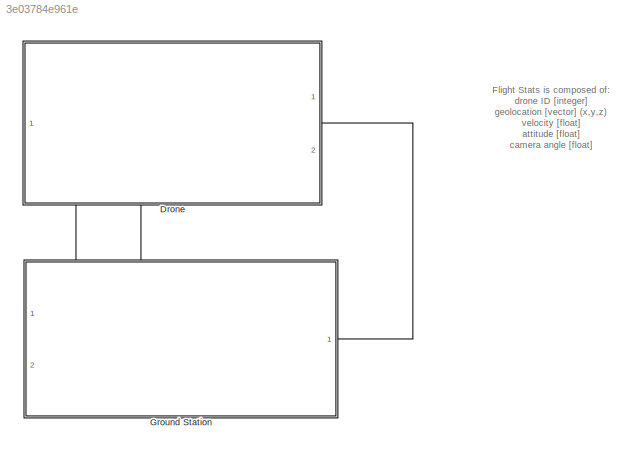
MODEL slx_3e03784e961e
KIND model
CONFIG AbsTol = auto
CONFIG EnableMultiTasking = off
CONFIG FixedStep = auto
CONFIG MaxStep = auto
CONFIG MinStep = auto
CONFIG RelTol = 1e-3
CONFIG SampleTimeConstraint = Unconstrained
CONFIG SolverName = VariableStepAuto
CONFIG StartTime = 0.0
CONFIG StopTime = 10.0
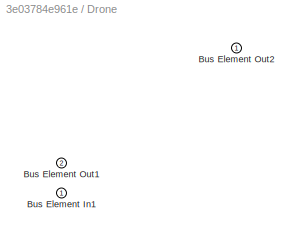
BLOCK [SubSystem] Drone
  PortSchema = {"entries":[{"content":{"headerSize":26,"margin":15,"minimumSpacing":25,"sides":[{"content":{"connectorIds":["Out1","Out2"]},"type":"ConnectorPlacement.EquallySpacedRectSide","uuid":"5dbdb512-c724-4537-b423-e7f241817497"},{"content":{"connectorIds":["In1"],"side":"RIGHT"},"type":"ConnectorPlacement.EquallySpacedRectSide","uuid":"ed169a95-4211-4c22-8607-e2cdf6a6fff2"},{"content":{"connectorIds":[],...<+439ch>
  Ports = [1, 2]
  RequestExecContextInheritance = off
BLOCK [Inport] Drone/Bus Element In1
BLOCK [Outport] Drone/Bus Element Out1
  Port = 2
BLOCK [Outport] Drone/Bus Element Out2
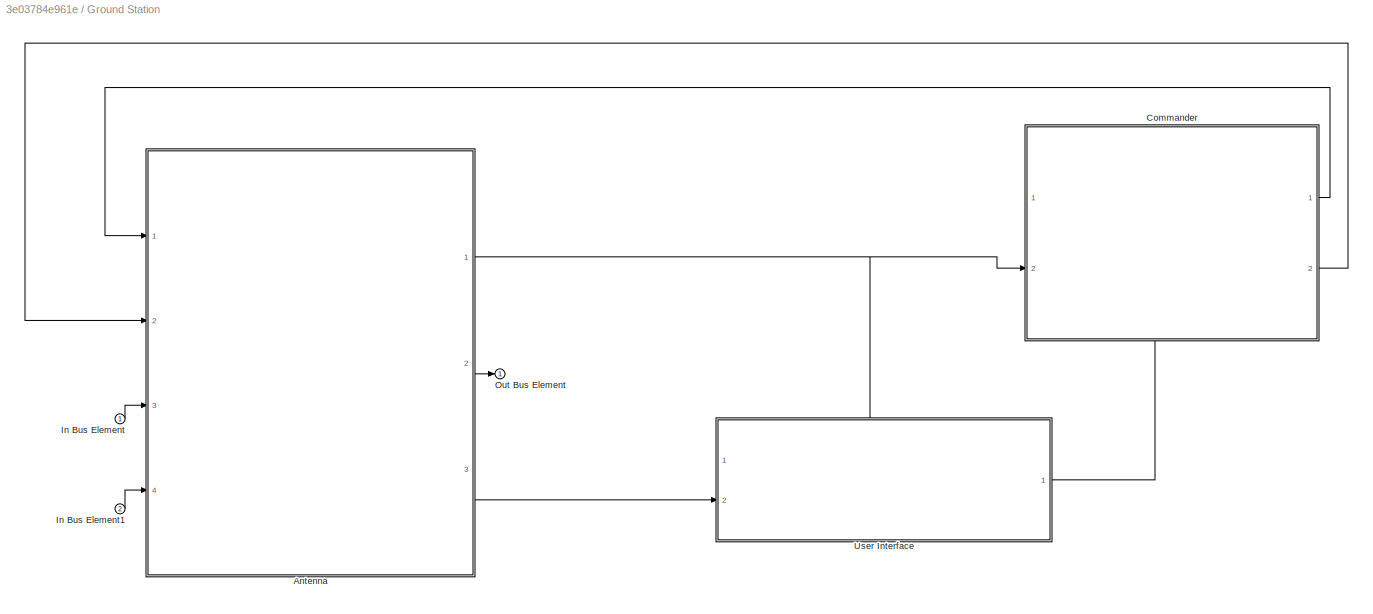
BLOCK [SubSystem] Ground Station
  PortSchema = {"entries":[{"content":{"headerSize":26,"margin":15,"minimumSpacing":25,"sides":[{"content":{"connectorIds":["In1","In2"]},"type":"ConnectorPlacement.EquallySpacedRectSide","uuid":"5dbdb512-c724-4537-b423-e7f241817497"},{"content":{"connectorIds":["Out1"],"side":"RIGHT"},"type":"ConnectorPlacement.EquallySpacedRectSide","uuid":"ed169a95-4211-4c22-8607-e2cdf6a6fff2"},{"content":{"connectorIds":[],"...<+438ch>
  Ports = [2, 1]
  RequestExecContextInheritance = off
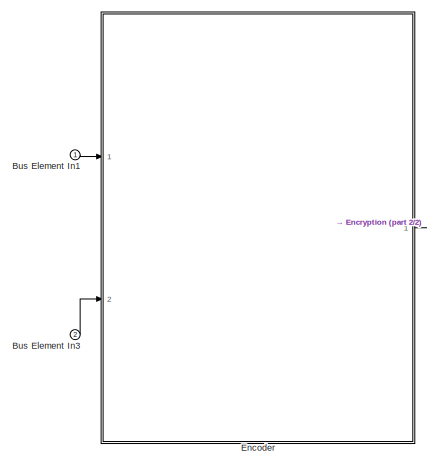
[diagram: Ground Station/Antenna - part 1/2, middle left region]
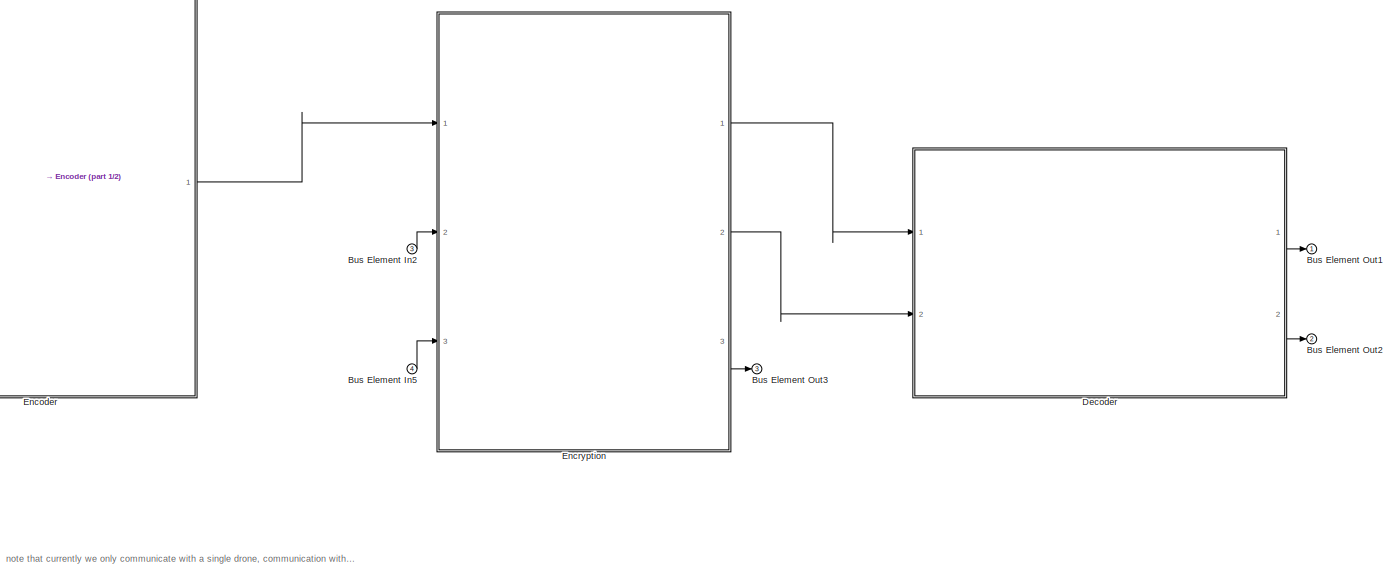
[diagram: Ground Station/Antenna - part 2/2, most of the canvas]
BLOCK [SubSystem] Ground Station/Antenna
  PortSchema = {"entries":[{"content":{"headerSize":26,"margin":15,"minimumSpacing":25,"sides":[{"content":{"connectorIds":["In1","In2","In3","In4"]},"type":"ConnectorPlacement.EquallySpacedRectSide","uuid":"8f51257f-f627-4f58-a4af-3e0fb88ba4bc"},{"content":{"connectorIds":["Out1","Out3","Out2"],"side":"RIGHT"},"type":"ConnectorPlacement.EquallySpacedRectSide","uuid":"f1fa1950-8e47-40b7-8d13-b3d0804be378"},{"con...<+464ch>
  Ports = [4, 3]
  RequestExecContextInheritance = off
BLOCK [Inport] Ground Station/Antenna/Bus Element In1
BLOCK [Inport] Ground Station/Antenna/Bus Element In2
  Port = 3
BLOCK [Inport] Ground Station/Antenna/Bus Element In3
  Port = 2
BLOCK [Inport] Ground Station/Antenna/Bus Element In5
  Port = 4
BLOCK [Outport] Ground Station/Antenna/Bus Element Out1
BLOCK [Outport] Ground Station/Antenna/Bus Element Out2
  Port = 2
BLOCK [Outport] Ground Station/Antenna/Bus Element Out3
  Port = 3
BLOCK [ModelReference] Ground Station/Antenna/Decoder
  ModelNameDialog = Decoder
  ModelReferenceVersion = 1.10
  PortSchema = {"entries":[{"content":{"headerSize":38,"margin":15,"minimumSpacing":25,"sides":[{"content":{"connectorIds":["In1","In2"]},"type":"ConnectorPlacement.EquallySpacedRectSide","uuid":"8f51257f-f627-4f58-a4af-3e0fb88ba4bc"},{"content":{"connectorIds":["Out1","Out2"],"side":"RIGHT"},"type":"ConnectorPlacement.EquallySpacedRectSide","uuid":"f1fa1950-8e47-40b7-8d13-b3d0804be378"},{"content":{"connectorId...<+445ch>
  Ports = [2, 2]
BLOCK [ModelReference] Ground Station/Antenna/Encoder
  ModelNameDialog = Encoder.slx
  ModelReferenceVersion = 1.7
  PortSchema = {"entries":[{"content":{"headerSize":38,"margin":15,"minimumSpacing":25,"sides":[{"content":{"connectorIds":["In1","In2"]},"type":"ConnectorPlacement.EquallySpacedRectSide","uuid":"8f51257f-f627-4f58-a4af-3e0fb88ba4bc"},{"content":{"connectorIds":["Out1"],"side":"RIGHT"},"type":"ConnectorPlacement.EquallySpacedRectSide","uuid":"f1fa1950-8e47-40b7-8d13-b3d0804be378"},{"content":{"connectorIds":[],"...<+438ch>
  Ports = [2, 1]
BLOCK [ModelReference] Ground Station/Antenna/Encryption
  ModelNameDialog = Encryption
  ModelReferenceVersion = 1.3
  PortSchema = {"entries":[{"content":{"headerSize":38,"margin":15,"minimumSpacing":25,"sides":[{"content":{"connectorIds":["In1","In2","In3"]},"type":"ConnectorPlacement.EquallySpacedRectSide","uuid":"8f51257f-f627-4f58-a4af-3e0fb88ba4bc"},{"content":{"connectorIds":["Out1","Out2","Out3"],"side":"RIGHT"},"type":"ConnectorPlacement.EquallySpacedRectSide","uuid":"f1fa1950-8e47-40b7-8d13-b3d0804be378"},{"content":...<+458ch>
  Ports = [3, 3]
BLOCK [ModelReference] Ground Station/Commander
  ModelNameDialog = CommanderBlock
  ModelReferenceVersion = 1.3
  PortSchema = {"entries":[{"content":{"headerSize":38,"margin":15,"minimumSpacing":25,"sides":[{"content":{"connectorIds":["In2"]},"type":"ConnectorPlacement.EquallySpacedRectSide","uuid":"8f51257f-f627-4f58-a4af-3e0fb88ba4bc"},{"content":{"connectorIds":["Out1","Out2"],"side":"RIGHT"},"type":"ConnectorPlacement.EquallySpacedRectSide","uuid":"f1fa1950-8e47-40b7-8d13-b3d0804be378"},{"content":{"connectorIds":[],...<+588ch>
  Ports = [2, 2]
BLOCK [Inport] Ground Station/In Bus Element
BLOCK [Inport] Ground Station/In Bus Element1
  Port = 2
BLOCK [Outport] Ground Station/Out Bus Element
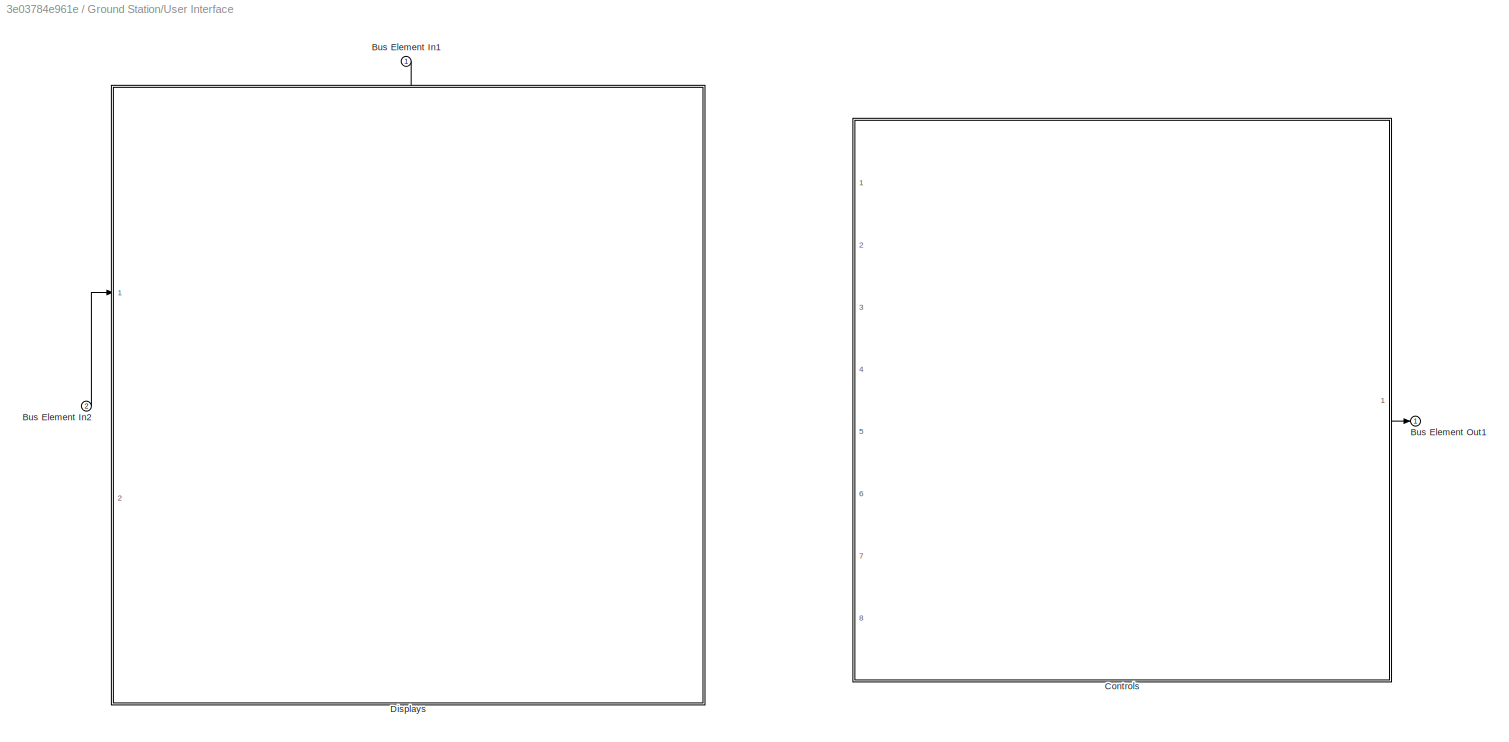
BLOCK [SubSystem] Ground Station/User Interface
  PortSchema = {"entries":[{"content":{"headerSize":26,"margin":15,"minimumSpacing":25,"sides":[{"content":{"connectorIds":["In2"]},"type":"ConnectorPlacement.EquallySpacedRectSide","uuid":"8f51257f-f627-4f58-a4af-3e0fb88ba4bc"},{"content":{"connectorIds":["Out1"],"side":"RIGHT"},"type":"ConnectorPlacement.EquallySpacedRectSide","uuid":"f1fa1950-8e47-40b7-8d13-b3d0804be378"},{"content":{"connectorIds":["In1"],"s...<+437ch>
  Ports = [2, 1]
  RequestExecContextInheritance = off
BLOCK [Inport] Ground Station/User Interface/Bus Element In1
BLOCK [Inport] Ground Station/User Interface/Bus Element In2
  Port = 2
BLOCK [Outport] Ground Station/User Interface/Bus Element Out1
BLOCK [ModelReference] Ground Station/User Interface/Controls
  ModelNameDialog = Controls
  ModelReferenceVersion = 1.5
  PortSchema = {"entries":[{"content":{"headerSize":38,"margin":15,"minimumSpacing":25,"sides":[{"content":{"connectorIds":["In1","In2","In3","In4","In5","In6","In7","In8"]},"type":"ConnectorPlacement.EquallySpacedRectSide","uuid":"8f51257f-f627-4f58-a4af-3e0fb88ba4bc"},{"content":{"connectorIds":["Out1"],"side":"RIGHT"},"type":"ConnectorPlacement.EquallySpacedRectSide","uuid":"f1fa1950-8e47-40b7-8d13-b3d0804be3...<+474ch>
  Ports = [8, 1]
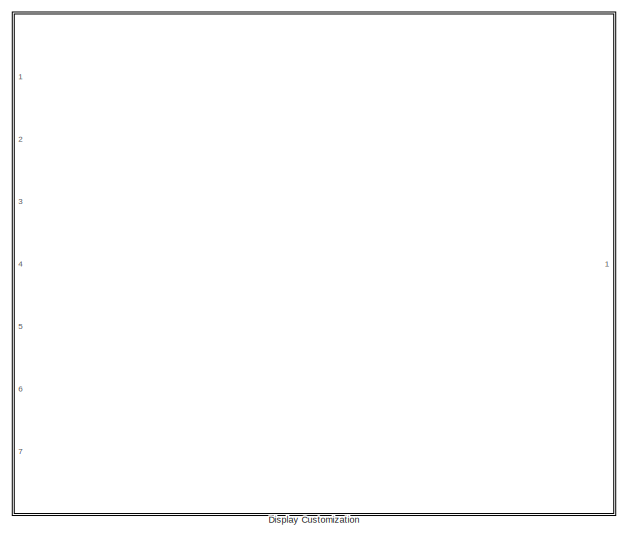
[diagram: Ground Station/User Interface/Displays - part 1/2, top right region]
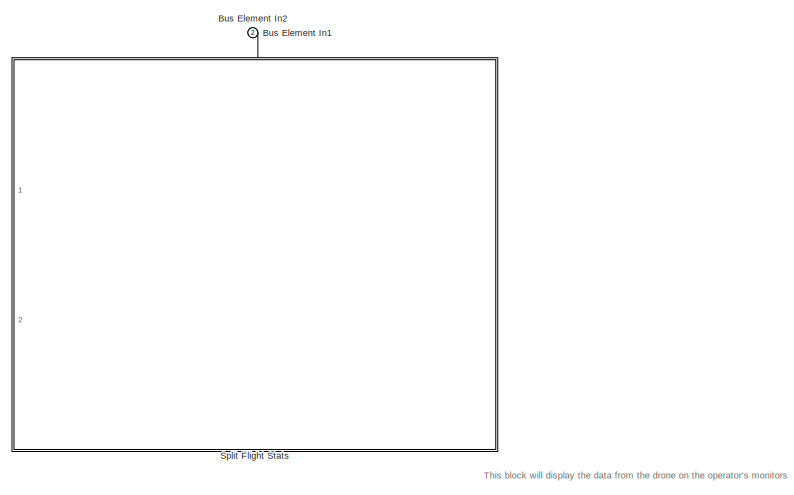
[diagram: Ground Station/User Interface/Displays - part 2/2, bottom left region]
BLOCK [SubSystem] Ground Station/User Interface/Displays
  PortSchema = {"entries":[{"content":{"headerSize":26,"margin":15,"minimumSpacing":25,"sides":[{"content":{"connectorIds":["In1"]},"type":"ConnectorPlacement.EquallySpacedRectSide","uuid":"8f51257f-f627-4f58-a4af-3e0fb88ba4bc"},{"content":{"connectorIds":[],"side":"RIGHT"},"type":"ConnectorPlacement.EquallySpacedRectSide","uuid":"f1fa1950-8e47-40b7-8d13-b3d0804be378"},{"content":{"connectorIds":["In2"],"side":"...<+431ch>
  Ports = [2]
  RequestExecContextInheritance = off
BLOCK [Inport] Ground Station/User Interface/Displays/Bus Element In1
  Port = 2
BLOCK [Inport] Ground Station/User Interface/Displays/Bus Element In2
BLOCK [ModelReference] Ground Station/User Interface/Displays/Display Customization
  ModelNameDialog = DisplayCustomization
  ModelReferenceVersion = 1.9
  PortSchema = {"entries":[{"content":{"headerSize":38,"margin":15,"minimumSpacing":25,"sides":[{"content":{"connectorIds":["In1","In2","In3","In4","In5","In6","In7"]},"type":"ConnectorPlacement.EquallySpacedRectSide","uuid":"8f51257f-f627-4f58-a4af-3e0fb88ba4bc"},{"content":{"connectorIds":[],"side":"RIGHT"},"type":"ConnectorPlacement.EquallySpacedRectSide","uuid":"f1fa1950-8e47-40b7-8d13-b3d0804be378"},{"conte...<+612ch>
  Ports = [7, 1]
BLOCK [ModelReference] Ground Station/User Interface/Displays/Split Flight Stats
  ModelNameDialog = SplitFlightStats
  ModelReferenceVersion = 1.12
  PortSchema = {"entries":[{"content":{"headerSize":38,"margin":15,"minimumSpacing":25,"sides":[{"content":{"connectorIds":[]},"type":"ConnectorPlacement.EquallySpacedRectSide","uuid":"f1942fcd-7656-491b-a1c1-0009704286d0"},{"content":{"connectorIds":["In1"],"side":"RIGHT"},"type":"ConnectorPlacement.EquallySpacedRectSide","uuid":"8c462db5-e755-4394-aa25-af0391ddb18d"},{"content":{"connectorIds":["In2"],"side":"...<+431ch>
  Ports = [2]
ANNOTATION (root): Flight Stats is composed of: drone ID [integer] geolocation [vector] (x,y,z) velocity [float] attitude [float] camera angle [float] drone status [boolean] battery indicator [float] obstacle warning [boolean] ? data status [boolean]
ANNOTATION Ground Station/Antenna: note that currently we only communicate with a single drone, communication with multiple drones will be implemented following finalization of GC system testing
ANNOTATION Ground Station/User Interface/Displays: This block will display the data from the drone on the operator's monitors
LINE Drone:1 -> Ground Station:2
LINE Drone:2 -> Ground Station:1
LINE Ground Station/Antenna/Bus Element In1:1 -> Ground Station/Antenna/Encoder:1
LINE Ground Station/Antenna/Bus Element In2:1 -> Ground Station/Antenna/Encryption:2
LINE Ground Station/Antenna/Bus Element In3:1 -> Ground Station/Antenna/Encoder:2
LINE Ground Station/Antenna/Bus Element In5:1 -> Ground Station/Antenna/Encryption:3
LINE Ground Station/Antenna/Decoder:1 -> Ground Station/Antenna/Bus Element Out1:1
LINE Ground Station/Antenna/Decoder:2 -> Ground Station/Antenna/Bus Element Out2:1
LINE Ground Station/Antenna/Encoder:1 -> Ground Station/Antenna/Encryption:1
LINE Ground Station/Antenna/Encryption:1 -> Ground Station/Antenna/Decoder:1
LINE Ground Station/Antenna/Encryption:2 -> Ground Station/Antenna/Decoder:2
LINE Ground Station/Antenna/Encryption:3 -> Ground Station/Antenna/Bus Element Out3:1
NET Ground Station/Antenna:1 -> Ground Station/Commander:2, Ground Station/User Interface:1
LINE Ground Station/Antenna:2 -> Ground Station/User Interface:2
LINE Ground Station/Antenna:3 -> Ground Station/Out Bus Element:1
LINE Ground Station/Commander:1 -> Ground Station/Antenna:1
LINE Ground Station/Commander:2 -> Ground Station/Antenna:2
LINE Ground Station/In Bus Element1:1 -> Ground Station/Antenna:4
LINE Ground Station/In Bus Element:1 -> Ground Station/Antenna:3
LINE Ground Station/User Interface/Bus Element In1:1 -> Ground Station/User Interface/Displays:2
LINE Ground Station/User Interface/Bus Element In2:1 -> Ground Station/User Interface/Displays:1
LINE Ground Station/User Interface/Controls:1 -> Ground Station/User Interface/Bus Element Out1:1
LINE Ground Station/User Interface/Displays/Bus Element In1:1 -> Ground Station/User Interface/Displays/Split Flight Stats:2
LINE Ground Station/User Interface:1 -> Ground Station/Commander:1
LINE Ground Station:1 -> Drone:1
note: NET lines group one-source signal fan-out (src -> all destinations, sorted); 1:1 wires keep LINE
